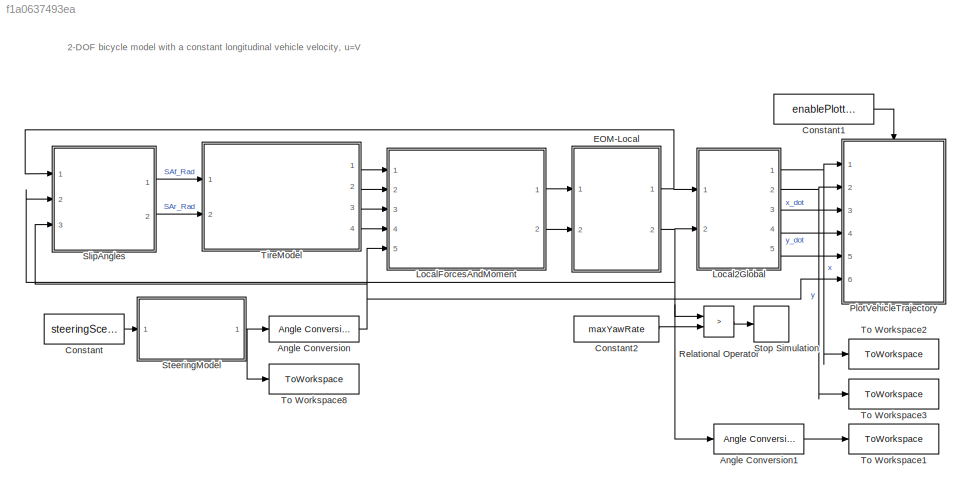
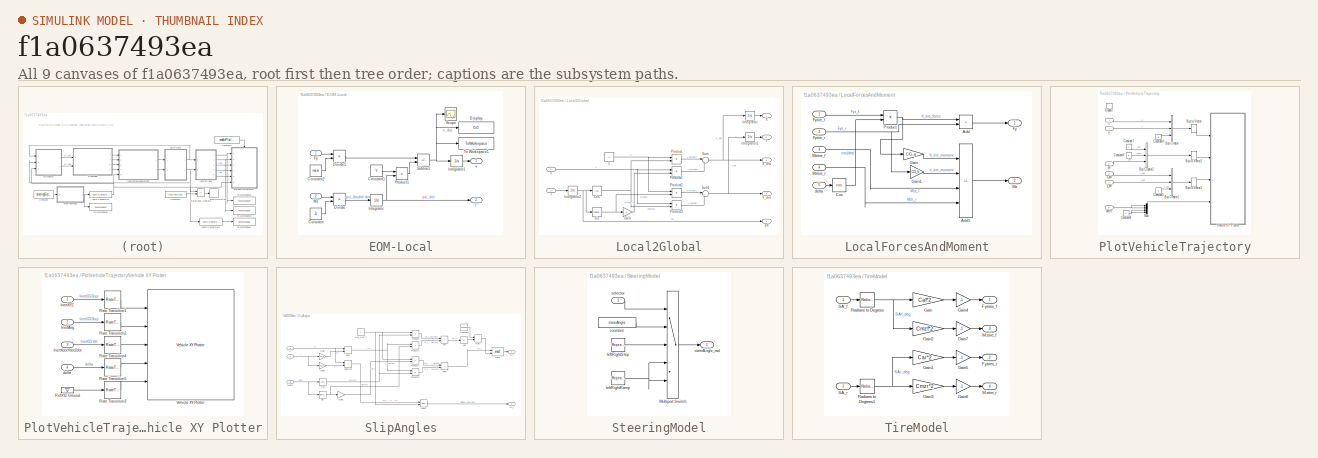
[diagram: thumbnail index - all 9 canvases of the model, root first then tree order]
MODEL slx_f1a0637493ea
KIND model
CONFIG AbsTol = auto
CONFIG EnableMultiTasking = off
CONFIG FixedStep = 0.001
CONFIG MaxStep = auto
CONFIG MinStep = auto
CONFIG RelTol = 1e-5
CONFIG SampleTimeConstraint = Unconstrained
CONFIG Solver = VariableStepAuto
CONFIG SolverName = VariableStepAuto
CONFIG StartTime = 0.0
CONFIG StopTime = 10
BLOCK [Reference] Angle Conversion  REF=aerolibconvert2/Angle Conversion
  Ports = [1, 1]
  SourceBlock = aerolibconvert2/Angle Conversion
  SourceProductBaseCode = AE
  SourceType = Angle Conversion
BLOCK [Reference] Angle Conversion1  REF=aerolibconvert2/Angle Conversion
  Ports = [1, 1]
  SourceBlock = aerolibconvert2/Angle Conversion
  SourceProductBaseCode = AE
  SourceType = Angle Conversion
BLOCK [Constant] Constant
  Value = steeringScenario
BLOCK [Constant] Constant1
  Value = enablePlotting
BLOCK [Constant] Constant2
  Value = maxYawRate
BLOCK [SubSystem] EOM-Local
  Ports = [2, 2]
  RequestExecContextInheritance = off
BLOCK [Constant] EOM-Local/Constant
  Value = Jz
BLOCK [Constant] EOM-Local/Constant1
  Value = V
BLOCK [Constant] EOM-Local/Constant2
  Value = mass
BLOCK [Display] EOM-Local/Display
  Decimation = 1
  Ports = [1]
BLOCK [Product] EOM-Local/Divide
  Inputs = */
  Ports = [2, 1]
BLOCK [Product] EOM-Local/Divide1
  Inputs = */
  Ports = [2, 1]
BLOCK [Inport] EOM-Local/Fy
BLOCK [Integrator] EOM-Local/Integrator
  Ports = [1, 1]
BLOCK [Integrator] EOM-Local/Integrator1
  Ports = [1, 1]
BLOCK [Inport] EOM-Local/Mz
  Port = 2
BLOCK [Product] EOM-Local/Product1
  Ports = [2, 1]
BLOCK [Scope] EOM-Local/Scope
  Floating = off
  NumInputPorts = 1
  Ports = [1]
  ScopeSpecificationString = Simulink.scopes.TimeScopeBlockCfg('CurrentConfiguration', extmgr.ConfigurationSet(extmgr.Configuration('Core','General UI',true),extmgr.Configuration('Core','Source UI',true),extmgr.Configuration('Sources','WiredSimulink',true),extmgr.Configuration('Visuals','Time Domain',true,'SerializedDisplays',{struct('MinYLimReal','-24.94916','MaxYLimReal','13.31861','YLabelReal','','MinYLimMag','0.00000','Ma...<+1407ch>
BLOCK [Sum] EOM-Local/Subtract
  IconShape = rectangular
  Inputs = +-
  Ports = [2, 1]
BLOCK [ToWorkspace] EOM-Local/To Workspace1
  FixptAsFi = on
  MaxDataPoints = inf
  Ports = [1]
  SampleTime = -1
  SaveFormat = Timeseries
  VariableName = lateral_acceleration
BLOCK [Outport] EOM-Local/r
  Port = 2
BLOCK [Outport] EOM-Local/v
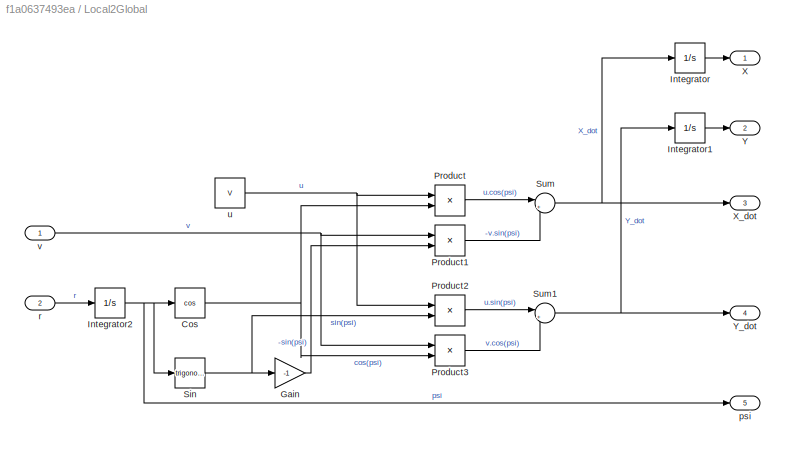
BLOCK [SubSystem] Local2Global
  Ports = [2, 5]
  RequestExecContextInheritance = off
BLOCK [Trigonometry] Local2Global/Cos
  Operator = cos
  Ports = [1, 1]
BLOCK [Gain] Local2Global/Gain
  Gain = -1
BLOCK [Integrator] Local2Global/Integrator
  Ports = [1, 1]
BLOCK [Integrator] Local2Global/Integrator1
  Ports = [1, 1]
BLOCK [Integrator] Local2Global/Integrator2
  Ports = [1, 1]
BLOCK [Product] Local2Global/Product
  Ports = [2, 1]
BLOCK [Product] Local2Global/Product1
  Ports = [2, 1]
BLOCK [Product] Local2Global/Product2
  Ports = [2, 1]
BLOCK [Product] Local2Global/Product3
  Ports = [2, 1]
BLOCK [Trigonometry] Local2Global/Sin
  Ports = [1, 1]
BLOCK [Sum] Local2Global/Sum
  Inputs = |++
  Ports = [2, 1]
BLOCK [Sum] Local2Global/Sum1
  Inputs = |++
  Ports = [2, 1]
BLOCK [Outport] Local2Global/X
BLOCK [Outport] Local2Global/X_dot
  Port = 3
BLOCK [Outport] Local2Global/Y
  Port = 2
BLOCK [Outport] Local2Global/Y_dot
  Port = 4
BLOCK [Outport] Local2Global/psi
  Port = 5
BLOCK [Inport] Local2Global/r
  Port = 2
BLOCK [Constant] Local2Global/u
  Value = V
BLOCK [Inport] Local2Global/v
BLOCK [SubSystem] LocalForcesAndMoment
  Ports = [5, 2]
  RequestExecContextInheritance = off
BLOCK [Sum] LocalForcesAndMoment/Add
  IconShape = rectangular
  Ports = [2, 1]
BLOCK [Sum] LocalForcesAndMoment/Add1
  IconShape = rectangular
  Inputs = +-++
  Ports = [4, 1]
BLOCK [Trigonometry] LocalForcesAndMoment/Cos
  Operator = cos
  Ports = [1, 1]
BLOCK [Outport] LocalForcesAndMoment/Fy
BLOCK [Inport] LocalForcesAndMoment/Fytire_f
BLOCK [Inport] LocalForcesAndMoment/Fytire_r
  Port = 2
BLOCK [Gain] LocalForcesAndMoment/Gain
  Gain = CG_a
BLOCK [Gain] LocalForcesAndMoment/Gain1
  Gain = CG_b
BLOCK [Outport] LocalForcesAndMoment/Mz
  Port = 2
BLOCK [Inport] LocalForcesAndMoment/Mztire_f
  Port = 3
BLOCK [Inport] LocalForcesAndMoment/Mztire_r
  Port = 4
BLOCK [Product] LocalForcesAndMoment/Product
  Ports = [2, 1]
BLOCK [Inport] LocalForcesAndMoment/delta
  Port = 5
BLOCK [SubSystem] PlotVehicleTrajectory
  Ports = [6, 0, 1]
  RequestExecContextInheritance = off
BLOCK [BusCreator] PlotVehicleTrajectory/Bus Creator
  DisplayOption = bar
  InheritFromInputs = on
  Inputs = 3
  Ports = [3, 1]
BLOCK [BusCreator] PlotVehicleTrajectory/Bus Creator1
  DisplayOption = bar
  InheritFromInputs = on
  Inputs = 3
  Ports = [3, 1]
BLOCK [BusCreator] PlotVehicleTrajectory/Bus Creator2
  DisplayOption = bar
  InheritFromInputs = on
  Inputs = 3
  Ports = [3, 1]
BLOCK [BusToVector] PlotVehicleTrajectory/Bus to Vector
BLOCK [BusToVector] PlotVehicleTrajectory/Bus to Vector1
BLOCK [BusToVector] PlotVehicleTrajectory/Bus to Vector2
BLOCK [Constant] PlotVehicleTrajectory/Constant4
  Value = 0
BLOCK [Constant] PlotVehicleTrajectory/Constant5
  Value = 0
BLOCK [Constant] PlotVehicleTrajectory/Constant6
  Value = 0
BLOCK [Constant] PlotVehicleTrajectory/Constant7
  Value = 0
BLOCK [Constant] PlotVehicleTrajectory/Constant8
  Value = 0
BLOCK [EnablePort] PlotVehicleTrajectory/Enable
  Ports = []
BLOCK [Mux] PlotVehicleTrajectory/Mux
  DisplayOption = bar
  Ports = [4, 1]
BLOCK [SubSystem] PlotVehicleTrajectory/Vehicle XY Plotter
  Ports = [4]
  RequestExecContextInheritance = off
BLOCK [Inport] PlotVehicleTrajectory/Vehicle XY Plotter/InertAng
  Port = 2
BLOCK [Inport] PlotVehicleTrajectory/Vehicle XY Plotter/InertXYZ
BLOCK [Inport] PlotVehicleTrajectory/Vehicle XY Plotter/InertXdotYdotZdot
  Port = 3
BLOCK [RateTransition] PlotVehicleTrajectory/Vehicle XY Plotter/Rate Transition1
  Deterministic = off
  OutPortSampleTime = pltDT
BLOCK [RateTransition] PlotVehicleTrajectory/Vehicle XY Plotter/Rate Transition2
  Deterministic = off
  OutPortSampleTime = pltDT
BLOCK [RateTransition] PlotVehicleTrajectory/Vehicle XY Plotter/Rate Transition3
  Deterministic = off
  OutPortSampleTime = pltDT
BLOCK [RateTransition] PlotVehicleTrajectory/Vehicle XY Plotter/Rate Transition4
  Deterministic = off
  OutPortSampleTime = pltDT
BLOCK [RateTransition] PlotVehicleTrajectory/Vehicle XY Plotter/Rate Transition5
  Deterministic = off
  OutPortSampleTime = pltDT
BLOCK [Ground] PlotVehicleTrajectory/Vehicle XY Plotter/RefXYZ Ground
BLOCK [Reference] PlotVehicleTrajectory/Vehicle XY Plotter/Vehicle XY Plotter  REF=vehdynlibviscommon/Vehicle XY Plotter
  Ports = [5]
  SourceBlock = vehdynlibviscommon/Vehicle XY Plotter
  SourceProductBaseCode = VE
  SourceType = Vehicle XY Plotter
BLOCK [Inport] PlotVehicleTrajectory/Vehicle XY Plotter/delta
  Port = 4
BLOCK [Inport] PlotVehicleTrajectory/delta
  Port = 6
BLOCK [Inport] PlotVehicleTrajectory/psi
  Port = 5
BLOCK [Inport] PlotVehicleTrajectory/x
BLOCK [Inport] PlotVehicleTrajectory/x_dot
  Port = 3
BLOCK [Inport] PlotVehicleTrajectory/y
  Port = 2
BLOCK [Inport] PlotVehicleTrajectory/y_dot
  Port = 4
BLOCK [RelationalOperator] Relational Operator
  InputSameDT = off
  Operator = >
  OutDataTypeStr = boolean
  Ports = [2, 1]
  RndMeth = Simplest
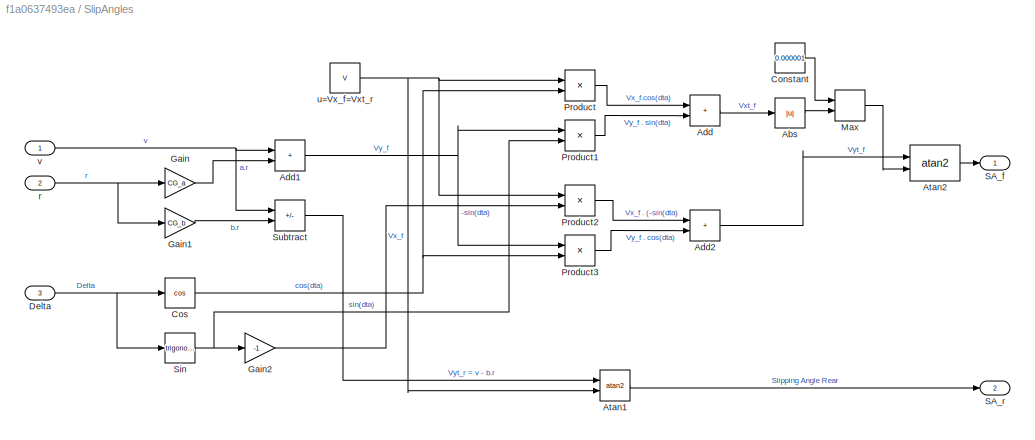
BLOCK [SubSystem] SlipAngles
  Ports = [3, 2]
  RequestExecContextInheritance = off
BLOCK [Abs] SlipAngles/Abs
  SaturateOnIntegerOverflow = off
BLOCK [Sum] SlipAngles/Add
  IconShape = rectangular
  Ports = [2, 1]
BLOCK [Sum] SlipAngles/Add1
  IconShape = rectangular
  Ports = [2, 1]
BLOCK [Sum] SlipAngles/Add2
  IconShape = rectangular
  Ports = [2, 1]
BLOCK [Trigonometry] SlipAngles/Atan1
  Operator = atan2
  Ports = [2, 1]
BLOCK [Trigonometry] SlipAngles/Atan2
  Operator = atan2
  Ports = [2, 1]
BLOCK [Constant] SlipAngles/Constant
  Value = 0.000001
BLOCK [Trigonometry] SlipAngles/Cos
  Operator = cos
  Ports = [1, 1]
BLOCK [Inport] SlipAngles/Delta
  Port = 3
BLOCK [Gain] SlipAngles/Gain
  Gain = CG_a
BLOCK [Gain] SlipAngles/Gain1
  Gain = CG_b
BLOCK [Gain] SlipAngles/Gain2
  Gain = -1
BLOCK [MinMax] SlipAngles/Max
  Function = max
  Inputs = 2
  Ports = [2, 1]
BLOCK [Product] SlipAngles/Product
  Ports = [2, 1]
BLOCK [Product] SlipAngles/Product1
  Ports = [2, 1]
BLOCK [Product] SlipAngles/Product2
  Ports = [2, 1]
BLOCK [Product] SlipAngles/Product3
  Ports = [2, 1]
BLOCK [Outport] SlipAngles/SA_f
BLOCK [Outport] SlipAngles/SA_r
  Port = 2
BLOCK [Trigonometry] SlipAngles/Sin
  Ports = [1, 1]
BLOCK [Sum] SlipAngles/Subtract
  IconShape = rectangular
  Inputs = +-
  Ports = [2, 1]
BLOCK [Inport] SlipAngles/r
  Port = 2
BLOCK [Constant] SlipAngles/u=Vx_f=Vxt_r
  Value = V
BLOCK [Inport] SlipAngles/v
BLOCK [SubSystem] SteeringModel
  Ports = [1, 1]
  RequestExecContextInheritance = off
BLOCK [MultiPortSwitch] SteeringModel/Multiport Switch
  DataPortForDefault = Additional data port
  DiagnosticForDefault = Warning
  InputSameDT = off
  Ports = [5, 1]
  SaturateOnIntegerOverflow = off
BLOCK [Constant] SteeringModel/constant
  Value = steerAngle
BLOCK [Reference] SteeringModel/leftRightRamp  REF=simulink/Sources/Repeating
Sequence
Interpolated
  Ports = [0, 1]
  SourceBlock = simulink/Sources/Repeating\nSequence\nInterpolated
  SourceProductBaseCode = SL
  SourceType = Repeating Sequence Interpolated
BLOCK [Reference] SteeringModel/leftRightStep  REF=simulink/Sources/Repeating
Sequence
Interpolated
  Ports = [0, 1]
  SourceBlock = simulink/Sources/Repeating\nSequence\nInterpolated
  SourceProductBaseCode = SL
  SourceType = Repeating Sequence Interpolated
BLOCK [Inport] SteeringModel/selector
BLOCK [Outport] SteeringModel/steerAngle_rad
BLOCK [Stop] Stop Simulation
BLOCK [SubSystem] TireModel
  Ports = [2, 4]
  RequestExecContextInheritance = off
BLOCK [Outport] TireModel/Fytires_f
BLOCK [Outport] TireModel/Fytires_r
  Port = 2
BLOCK [Gain] TireModel/Gain
  Gain = Caf*2
BLOCK [Gain] TireModel/Gain1
  Gain = Car*2
BLOCK [Gain] TireModel/Gain2
  Gain = Cmzf*2
BLOCK [Gain] TireModel/Gain3
  Gain = Cmzr*2
BLOCK [Gain] TireModel/Gain4
  Gain = -1
BLOCK [Gain] TireModel/Gain5
  Gain = -1
BLOCK [Gain] TireModel/Gain6
  Gain = -1
BLOCK [Gain] TireModel/Gain7
  Gain = -1
BLOCK [Outport] TireModel/Mztire_f
  Port = 3
BLOCK [Outport] TireModel/Mztire_r
  Port = 4
BLOCK [Reference] TireModel/Radians to Degrees  REF=simulink_extras/Transformations/Radians
to Degrees
  Ports = [1, 1]
  SourceBlock = simulink_extras/Transformations/Radians\nto Degrees
  SourceProductBaseCode = SL
  SourceType = RadiansToDegrees
BLOCK [Reference] TireModel/Radians to Degrees1  REF=simulink_extras/Transformations/Radians
to Degrees
  Ports = [1, 1]
  SourceBlock = simulink_extras/Transformations/Radians\nto Degrees
  SourceProductBaseCode = SL
  SourceType = RadiansToDegrees
BLOCK [Inport] TireModel/SA_f
BLOCK [Inport] TireModel/SA_r
  Port = 2
BLOCK [ToWorkspace] To Workspace1
  FixptAsFi = on
  MaxDataPoints = inf
  Ports = [1]
  SampleTime = -1
  SaveFormat = Timeseries
  VariableName = yawrate
BLOCK [ToWorkspace] To Workspace2
  FixptAsFi = on
  MaxDataPoints = inf
  Ports = [1]
  SampleTime = -1
  SaveFormat = Timeseries
  VariableName = X
BLOCK [ToWorkspace] To Workspace3
  FixptAsFi = on
  MaxDataPoints = inf
  Ports = [1]
  SampleTime = -1
  SaveFormat = Timeseries
  VariableName = Y
BLOCK [ToWorkspace] To Workspace8
  FixptAsFi = on
  MaxDataPoints = inf
  NameLocation = top
  Ports = [1]
  SampleTime = -1
  SaveFormat = Timeseries
  VariableName = steer
ANNOTATION (root): 2-DOF bicycle model with a constant longitudinal vehicle velocity, u=V
LINE Angle Conversion1:1 -> To Workspace1:1
NET Angle Conversion:1 -> LocalForcesAndMoment:5, PlotVehicleTrajectory:6, SlipAngles:3
LINE Constant1:1 -> PlotVehicleTrajectory:enable
LINE Constant2:1 -> Relational Operator:2
LINE Constant:1 -> SteeringModel:1
LINE EOM-Local/Constant1:1 -> EOM-Local/Product1:1
LINE EOM-Local/Constant2:1 -> EOM-Local/Divide1:2
LINE EOM-Local/Constant:1 -> EOM-Local/Divide:2
LINE EOM-Local/Divide1:1 -> EOM-Local/Subtract:1
LINE EOM-Local/Divide:1 -> EOM-Local/Integrator:1
LINE EOM-Local/Fy:1 -> EOM-Local/Divide1:1
LINE EOM-Local/Integrator1:1 -> EOM-Local/v:1
NET EOM-Local/Integrator:1 -> EOM-Local/Product1:2, EOM-Local/r:1
LINE EOM-Local/Mz:1 -> EOM-Local/Divide:1
LINE EOM-Local/Product1:1 -> EOM-Local/Subtract:2
NET EOM-Local/Subtract:1 -> EOM-Local/Display:1, EOM-Local/Integrator1:1, EOM-Local/Scope:1, EOM-Local/To Workspace1:1
NET EOM-Local:1 -> Local2Global:1, SlipAngles:1
NET EOM-Local:2 -> Angle Conversion1:1, Local2Global:2, Relational Operator:1, SlipAngles:2
NET Local2Global/Cos:1 -> Local2Global/Product3:2, Local2Global/Product:2
LINE Local2Global/Gain:1 -> Local2Global/Product1:2
LINE Local2Global/Integrator1:1 -> Local2Global/Y:1
NET Local2Global/Integrator2:1 -> Local2Global/Cos:1, Local2Global/Sin:1, Local2Global/psi:1
LINE Local2Global/Integrator:1 -> Local2Global/X:1
LINE Local2Global/Product1:1 -> Local2Global/Sum:2
LINE Local2Global/Product2:1 -> Local2Global/Sum1:1
LINE Local2Global/Product3:1 -> Local2Global/Sum1:2
LINE Local2Global/Product:1 -> Local2Global/Sum:1
NET Local2Global/Sin:1 -> Local2Global/Gain:1, Local2Global/Product2:2
NET Local2Global/Sum1:1 -> Local2Global/Integrator1:1, Local2Global/Y_dot:1
NET Local2Global/Sum:1 -> Local2Global/Integrator:1, Local2Global/X_dot:1
LINE Local2Global/r:1 -> Local2Global/Integrator2:1
NET Local2Global/u:1 -> Local2Global/Product2:1, Local2Global/Product:1
NET Local2Global/v:1 -> Local2Global/Product1:1, Local2Global/Product3:1
NET Local2Global:1 -> PlotVehicleTrajectory:1, To Workspace2:1
NET Local2Global:2 -> PlotVehicleTrajectory:2, To Workspace3:1
LINE Local2Global:3 -> PlotVehicleTrajectory:3
LINE Local2Global:4 -> PlotVehicleTrajectory:4
LINE Local2Global:5 -> PlotVehicleTrajectory:5
LINE LocalForcesAndMoment/Add1:1 -> LocalForcesAndMoment/Mz:1
LINE LocalForcesAndMoment/Add:1 -> LocalForcesAndMoment/Fy:1
LINE LocalForcesAndMoment/Cos:1 -> LocalForcesAndMoment/Product:2
LINE LocalForcesAndMoment/Fytire_f:1 -> LocalForcesAndMoment/Product:1
NET LocalForcesAndMoment/Fytire_r:1 -> LocalForcesAndMoment/Add:2, LocalForcesAndMoment/Gain1:1
LINE LocalForcesAndMoment/Gain1:1 -> LocalForcesAndMoment/Add1:2
LINE LocalForcesAndMoment/Gain:1 -> LocalForcesAndMoment/Add1:1
LINE LocalForcesAndMoment/Mztire_f:1 -> LocalForcesAndMoment/Add1:3
LINE LocalForcesAndMoment/Mztire_r:1 -> LocalForcesAndMoment/Add1:4
NET LocalForcesAndMoment/Product:1 -> LocalForcesAndMoment/Add:1, LocalForcesAndMoment/Gain:1
LINE LocalForcesAndMoment/delta:1 -> LocalForcesAndMoment/Cos:1
LINE LocalForcesAndMoment:1 -> EOM-Local:1
LINE LocalForcesAndMoment:2 -> EOM-Local:2
LINE PlotVehicleTrajectory/Bus Creator1:1 -> PlotVehicleTrajectory/Bus to Vector1:1
LINE PlotVehicleTrajectory/Bus Creator2:1 -> PlotVehicleTrajectory/Bus to Vector2:1
LINE PlotVehicleTrajectory/Bus Creator:1 -> PlotVehicleTrajectory/Bus to Vector:1
LINE PlotVehicleTrajectory/Bus to Vector1:1 -> PlotVehicleTrajectory/Vehicle XY Plotter:3
LINE PlotVehicleTrajectory/Bus to Vector2:1 -> PlotVehicleTrajectory/Vehicle XY Plotter:2
LINE PlotVehicleTrajectory/Bus to Vector:1 -> PlotVehicleTrajectory/Vehicle XY Plotter:1
LINE PlotVehicleTrajectory/Constant4:1 -> PlotVehicleTrajectory/Bus Creator:3
LINE PlotVehicleTrajectory/Constant5:1 -> PlotVehicleTrajectory/Bus Creator1:3
LINE PlotVehicleTrajectory/Constant6:1 -> PlotVehicleTrajectory/Bus Creator2:2
LINE PlotVehicleTrajectory/Constant7:1 -> PlotVehicleTrajectory/Bus Creator2:1
NET PlotVehicleTrajectory/Constant8:1 -> PlotVehicleTrajectory/Mux:3, PlotVehicleTrajectory/Mux:4
LINE PlotVehicleTrajectory/Mux:1 -> PlotVehicleTrajectory/Vehicle XY Plotter:4
LINE PlotVehicleTrajectory/Vehicle XY Plotter/InertAng:1 -> PlotVehicleTrajectory/Vehicle XY Plotter/Rate Transition2:1
LINE PlotVehicleTrajectory/Vehicle XY Plotter/InertXYZ:1 -> PlotVehicleTrajectory/Vehicle XY Plotter/Rate Transition1:1
LINE PlotVehicleTrajectory/Vehicle XY Plotter/InertXdotYdotZdot:1 -> PlotVehicleTrajectory/Vehicle XY Plotter/Rate Transition4:1
LINE PlotVehicleTrajectory/Vehicle XY Plotter/Rate Transition1:1 -> PlotVehicleTrajectory/Vehicle XY Plotter/Vehicle XY Plotter:1
LINE PlotVehicleTrajectory/Vehicle XY Plotter/Rate Transition2:1 -> PlotVehicleTrajectory/Vehicle XY Plotter/Vehicle XY Plotter:2
LINE PlotVehicleTrajectory/Vehicle XY Plotter/Rate Transition3:1 -> PlotVehicleTrajectory/Vehicle XY Plotter/Vehicle XY Plotter:5
LINE PlotVehicleTrajectory/Vehicle XY Plotter/Rate Transition4:1 -> PlotVehicleTrajectory/Vehicle XY Plotter/Vehicle XY Plotter:3
LINE PlotVehicleTrajectory/Vehicle XY Plotter/Rate Transition5:1 -> PlotVehicleTrajectory/Vehicle XY Plotter/Vehicle XY Plotter:4
LINE PlotVehicleTrajectory/Vehicle XY Plotter/RefXYZ Ground:1 -> PlotVehicleTrajectory/Vehicle XY Plotter/Rate Transition3:1
LINE PlotVehicleTrajectory/Vehicle XY Plotter/delta:1 -> PlotVehicleTrajectory/Vehicle XY Plotter/Rate Transition5:1
NET PlotVehicleTrajectory/delta:1 -> PlotVehicleTrajectory/Mux:1, PlotVehicleTrajectory/Mux:2
LINE PlotVehicleTrajectory/psi:1 -> PlotVehicleTrajectory/Bus Creator2:3
LINE PlotVehicleTrajectory/x:1 -> PlotVehicleTrajectory/Bus Creator:1
LINE PlotVehicleTrajectory/x_dot:1 -> PlotVehicleTrajectory/Bus Creator1:1
LINE PlotVehicleTrajectory/y:1 -> PlotVehicleTrajectory/Bus Creator:2
LINE PlotVehicleTrajectory/y_dot:1 -> PlotVehicleTrajectory/Bus Creator1:2
LINE Relational Operator:1 -> Stop Simulation:1
LINE SlipAngles/Abs:1 -> SlipAngles/Max:2
NET SlipAngles/Add1:1 -> SlipAngles/Product1:1, SlipAngles/Product3:1
LINE SlipAngles/Add2:1 -> SlipAngles/Atan2:1
LINE SlipAngles/Add:1 -> SlipAngles/Abs:1
LINE SlipAngles/Atan1:1 -> SlipAngles/SA_r:1
LINE SlipAngles/Atan2:1 -> SlipAngles/SA_f:1
LINE SlipAngles/Constant:1 -> SlipAngles/Max:1
NET SlipAngles/Cos:1 -> SlipAngles/Product3:2, SlipAngles/Product:2
NET SlipAngles/Delta:1 -> SlipAngles/Cos:1, SlipAngles/Sin:1
LINE SlipAngles/Gain1:1 -> SlipAngles/Subtract:2
LINE SlipAngles/Gain2:1 -> SlipAngles/Product2:2
LINE SlipAngles/Gain:1 -> SlipAngles/Add1:2
LINE SlipAngles/Max:1 -> SlipAngles/Atan2:2
LINE SlipAngles/Product1:1 -> SlipAngles/Add:2
LINE SlipAngles/Product2:1 -> SlipAngles/Add2:1
LINE SlipAngles/Product3:1 -> SlipAngles/Add2:2
LINE SlipAngles/Product:1 -> SlipAngles/Add:1
NET SlipAngles/Sin:1 -> SlipAngles/Gain2:1, SlipAngles/Product1:2
LINE SlipAngles/Subtract:1 -> SlipAngles/Atan1:1
NET SlipAngles/r:1 -> SlipAngles/Gain1:1, SlipAngles/Gain:1
NET SlipAngles/u=Vx_f=Vxt_r:1 -> SlipAngles/Atan1:2, SlipAngles/Product2:1, SlipAngles/Product:1
NET SlipAngles/v:1 -> SlipAngles/Add1:1, SlipAngles/Subtract:1
LINE SlipAngles:1 -> TireModel:1
LINE SlipAngles:2 -> TireModel:2
LINE SteeringModel/Multiport Switch:1 -> SteeringModel/steerAngle_rad:1
LINE SteeringModel/constant:1 -> SteeringModel/Multiport Switch:2
NET SteeringModel/leftRightRamp:1 -> SteeringModel/Multiport Switch:4, SteeringModel/Multiport Switch:5
LINE SteeringModel/leftRightStep:1 -> SteeringModel/Multiport Switch:3
LINE SteeringModel/selector:1 -> SteeringModel/Multiport Switch:1
NET SteeringModel:1 -> Angle Conversion:1, To Workspace8:1
LINE TireModel/Gain1:1 -> TireModel/Gain5:1
LINE TireModel/Gain2:1 -> TireModel/Gain7:1
LINE TireModel/Gain3:1 -> TireModel/Gain6:1
LINE TireModel/Gain4:1 -> TireModel/Fytires_f:1
LINE TireModel/Gain5:1 -> TireModel/Fytires_r:1
LINE TireModel/Gain6:1 -> TireModel/Mztire_r:1
LINE TireModel/Gain7:1 -> TireModel/Mztire_f:1
LINE TireModel/Gain:1 -> TireModel/Gain4:1
NET TireModel/Radians to Degrees1:1 -> TireModel/Gain1:1, TireModel/Gain3:1
NET TireModel/Radians to Degrees:1 -> TireModel/Gain2:1, TireModel/Gain:1
LINE TireModel/SA_f:1 -> TireModel/Radians to Degrees:1
LINE TireModel/SA_r:1 -> TireModel/Radians to Degrees1:1
LINE TireModel:1 -> LocalForcesAndMoment:1
LINE TireModel:2 -> LocalForcesAndMoment:2
LINE TireModel:3 -> LocalForcesAndMoment:3
LINE TireModel:4 -> LocalForcesAndMoment:4
note: NET lines group one-source signal fan-out (src -> all destinations, sorted); 1:1 wires keep LINE
